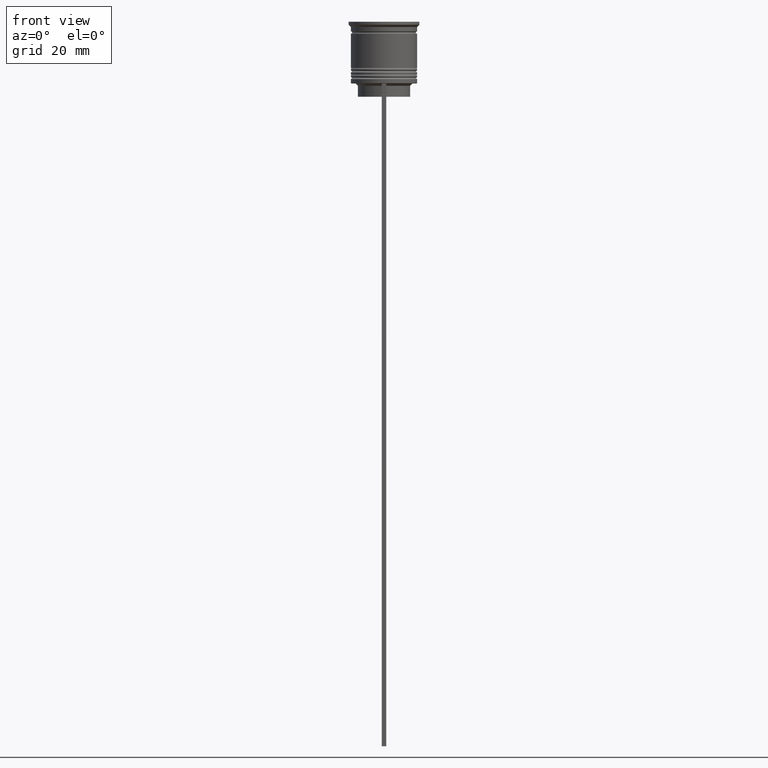
[diagram: clean part render]
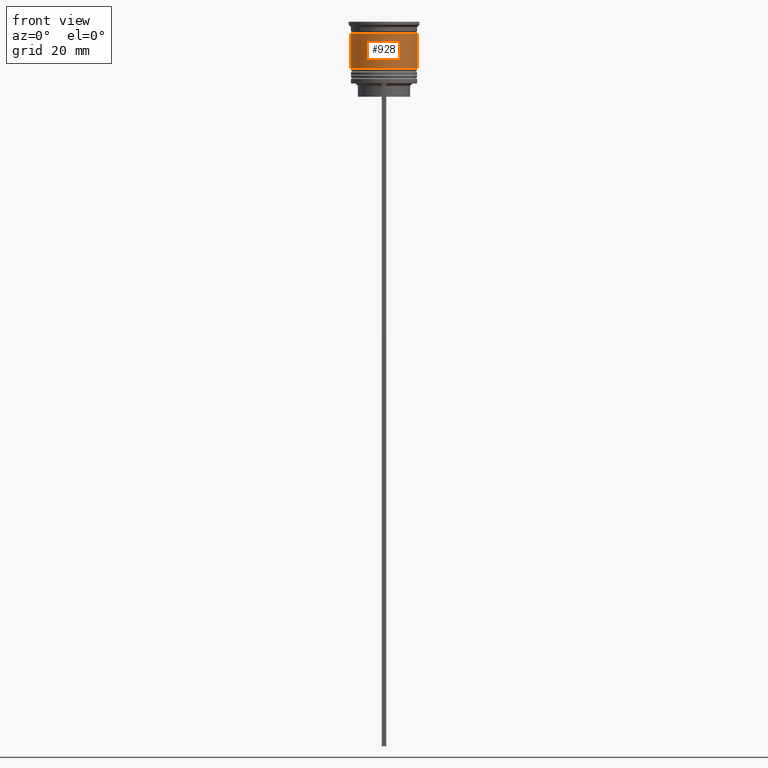
[diagram: same view with one face highlighted and labeled with its STEP entity id]
A machine part, front view. The second image highlights one B-rep face of the part: STEP entity #928.
In plain terms, the highlighted cylindrical surface (edge-blend (fillet) strip) has radius 7.5 mm, axis along (-0, -0, 1).
Its self-contained STEP definition (entity closure, byte-faithful):
#21 = DIRECTION ( 'NONE',  ( 1.000000000000000000, 0.000000000000000000, 0.000000000000000000 ) ) ;
#33 = DIRECTION ( 'NONE',  ( -0.000000000000000000, -0.000000000000000000, 1.000000000000000000 ) ) ;
#163 = ORIENTED_EDGE ( 'NONE', *, *, #2116, .F. ) ;
#317 = EDGE_LOOP ( 'NONE', ( #163, #1105, #1967, #546 ) ) ;
#366 = EDGE_CURVE ( 'NONE', #1479, #2133, #1168, .T. ) ;
#522 = AXIS2_PLACEMENT_3D ( 'NONE', #537, #2101, #21 ) ;
#537 = CARTESIAN_POINT ( 'NONE',  ( 0.000000000000000000, 0.000000000000000000, -2.700000000000001510 ) ) ;
#539 = CARTESIAN_POINT ( 'NONE',  ( 7.500000000000000000, 0.000000000000000000, 0.000000000000000000 ) ) ;
#546 = ORIENTED_EDGE ( 'NONE', *, *, #819, .F. ) ;
#558 = DIRECTION ( 'NONE',  ( -0.000000000000000000, -0.000000000000000000, 1.000000000000000000 ) ) ;
#796 = VERTEX_POINT ( 'NONE', #1694 ) ;
#819 = EDGE_CURVE ( 'NONE', #796, #2133, #1380, .T. ) ;
#901 = DIRECTION ( 'NONE',  ( -0.000000000000000000, -0.000000000000000000, 1.000000000000000000 ) ) ;
#923 = CARTESIAN_POINT ( 'NONE',  ( 0.000000000000000000, 0.000000000000000000, -10.50000000000000000 ) ) ;
#928 = ADVANCED_FACE ( 'NONE', ( #1176 ), #1004, .T. ) ;
#1004 = CYLINDRICAL_SURFACE ( 'NONE', #2349, 7.500000000000000000 ) ;
#1016 = CARTESIAN_POINT ( 'NONE',  ( 0.000000000000000000, 0.000000000000000000, 0.000000000000000000 ) ) ;
#1019 = LINE ( 'NONE', #1872, #2411 ) ;
#1099 = CARTESIAN_POINT ( 'NONE',  ( -7.500000000000001776, 9.184850993605149917E-16, -10.50000000000000000 ) ) ;
#1105 = ORIENTED_EDGE ( 'NONE', *, *, #1875, .T. ) ;
#1168 = LINE ( 'NONE', #539, #2165 ) ;
#1176 = FACE_OUTER_BOUND ( 'NONE', #317, .T. ) ;
#1380 = CIRCLE ( 'NONE', #522, 7.499999999999998224 ) ;
#1479 = VERTEX_POINT ( 'NONE', #2196 ) ;
#1589 = CIRCLE ( 'NONE', #1919, 7.500000000000001776 ) ;
#1669 = CARTESIAN_POINT ( 'NONE',  ( 7.499999999999998224, 0.000000000000000000, -2.700000000000001510 ) ) ;
#1694 = CARTESIAN_POINT ( 'NONE',  ( -7.499999999999998224, 9.184850993605145972E-16, -2.700000000000001510 ) ) ;
#1863 = VERTEX_POINT ( 'NONE', #1099 ) ;
#1872 = CARTESIAN_POINT ( 'NONE',  ( -7.500000000000000000, 9.184850993605147944E-16, 0.000000000000000000 ) ) ;
#1875 = EDGE_CURVE ( 'NONE', #1863, #1479, #1589, .T. ) ;
#1919 = AXIS2_PLACEMENT_3D ( 'NONE', #923, #558, #2069 ) ;
#1967 = ORIENTED_EDGE ( 'NONE', *, *, #366, .T. ) ;
#2069 = DIRECTION ( 'NONE',  ( 1.000000000000000000, 0.000000000000000000, 0.000000000000000000 ) ) ;
#2101 = DIRECTION ( 'NONE',  ( -0.000000000000000000, -0.000000000000000000, 1.000000000000000000 ) ) ;
#2116 = EDGE_CURVE ( 'NONE', #1863, #796, #1019, .T. ) ;
#2133 = VERTEX_POINT ( 'NONE', #1669 ) ;
#2165 = VECTOR ( 'NONE', #2330, 1000.000000000000000 ) ;
#2196 = CARTESIAN_POINT ( 'NONE',  ( 7.500000000000001776, 0.000000000000000000, -10.50000000000000000 ) ) ;
#2330 = DIRECTION ( 'NONE',  ( -0.000000000000000000, -0.000000000000000000, 1.000000000000000000 ) ) ;
#2337 = DIRECTION ( 'NONE',  ( 1.000000000000000000, 0.000000000000000000, 0.000000000000000000 ) ) ;
#2349 = AXIS2_PLACEMENT_3D ( 'NONE', #1016, #33, #2337 ) ;
#2411 = VECTOR ( 'NONE', #901, 1000.000000000000000 ) ;